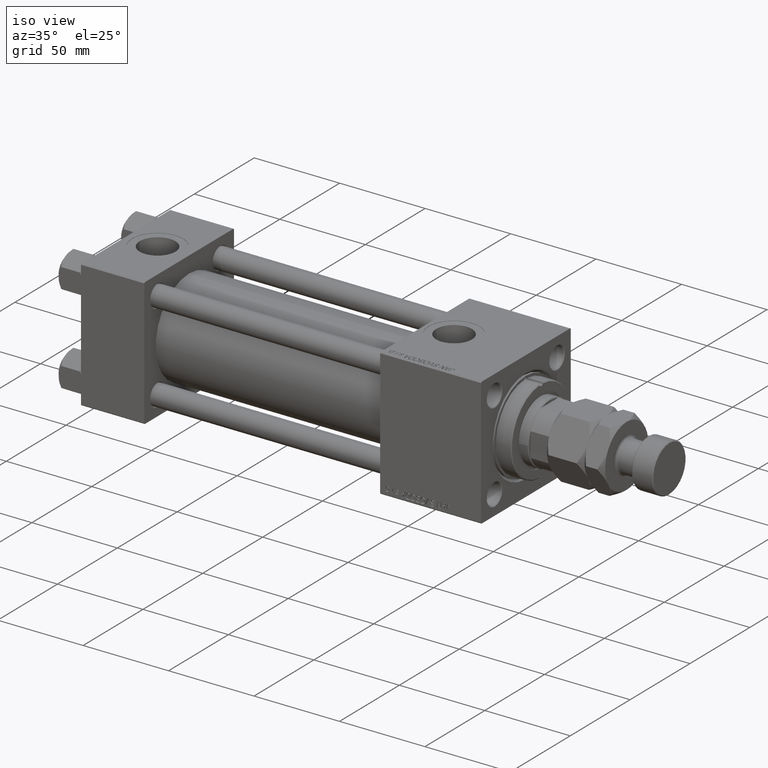
[diagram: clean part render]
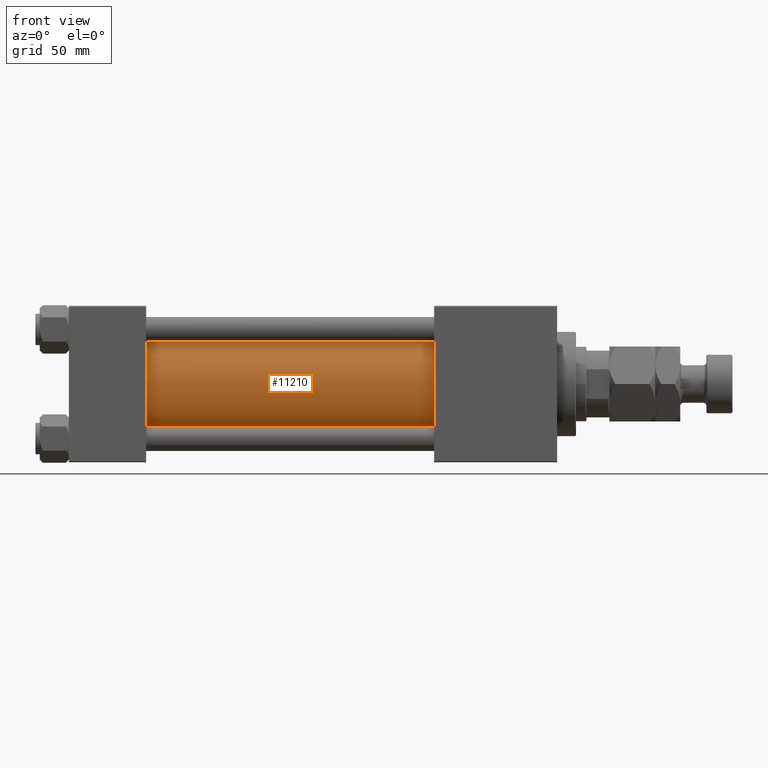
[diagram: tour spotlight — one face highlighted and labeled with its STEP entity id]
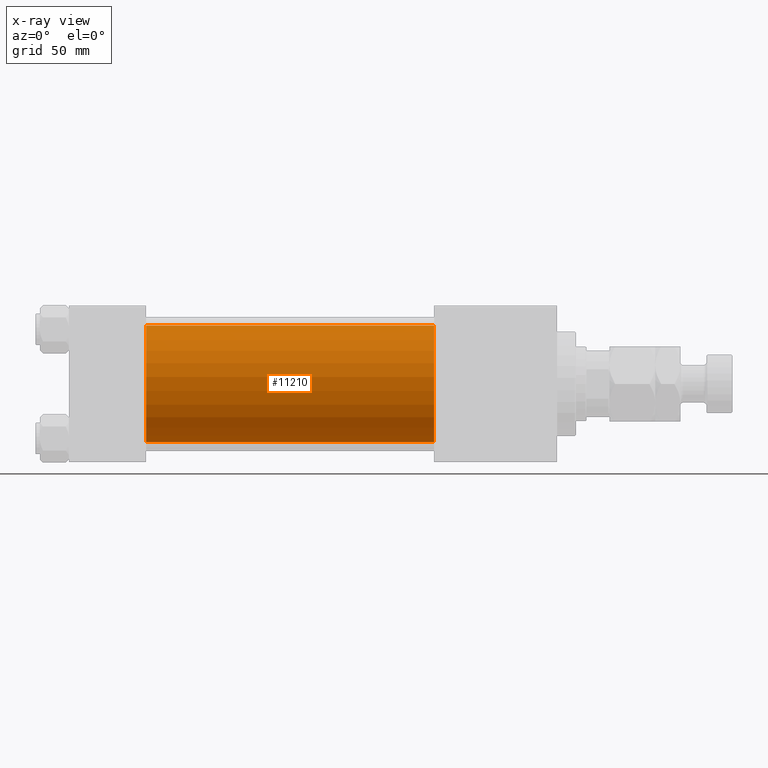
[diagram: x-ray of the same camera — body ghosted, this tour face saturated]
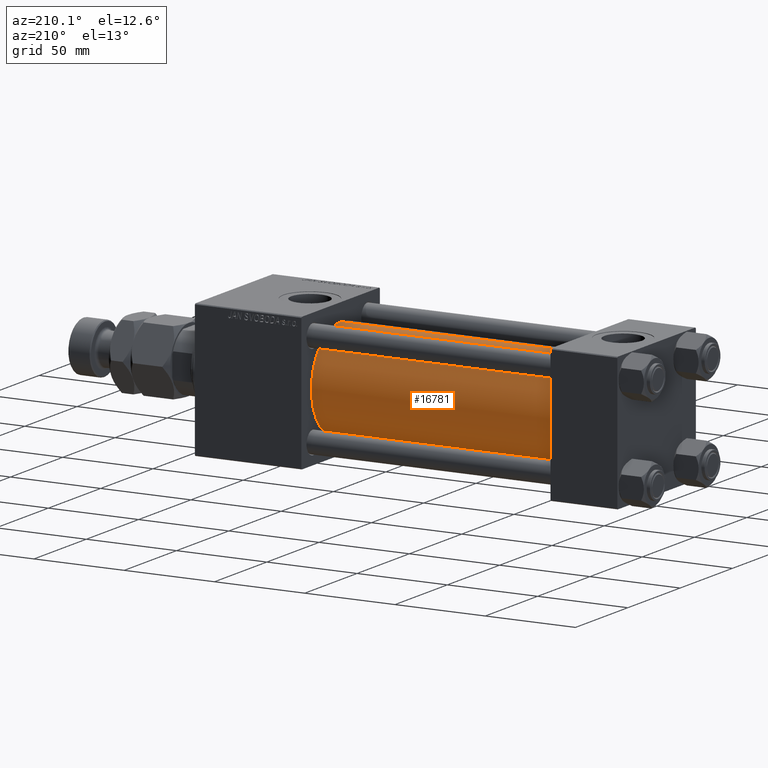
[diagram: tour spotlight — one face highlighted and labeled with its STEP entity id]
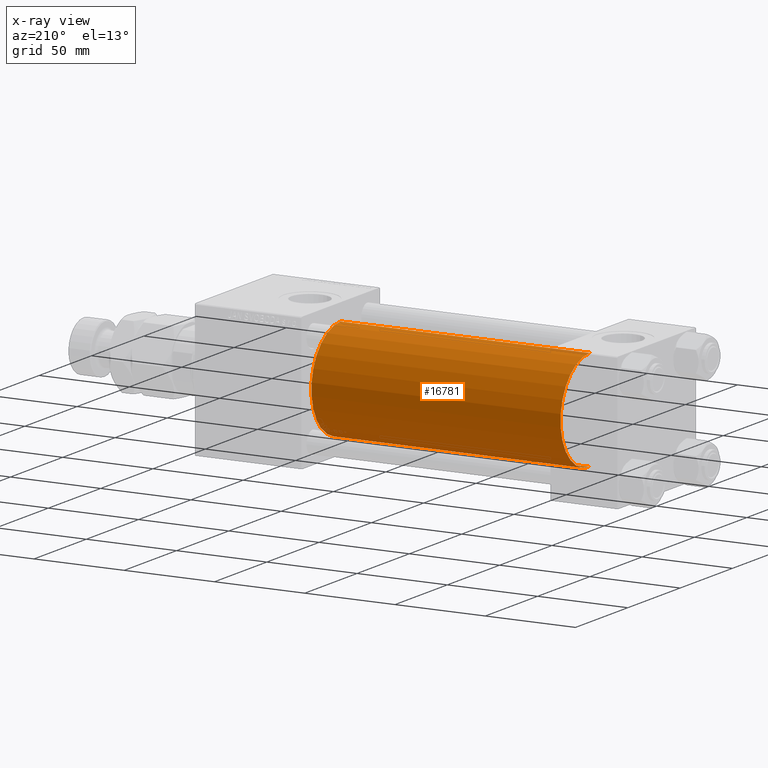
[diagram: x-ray of the same camera — body ghosted, this tour face saturated]
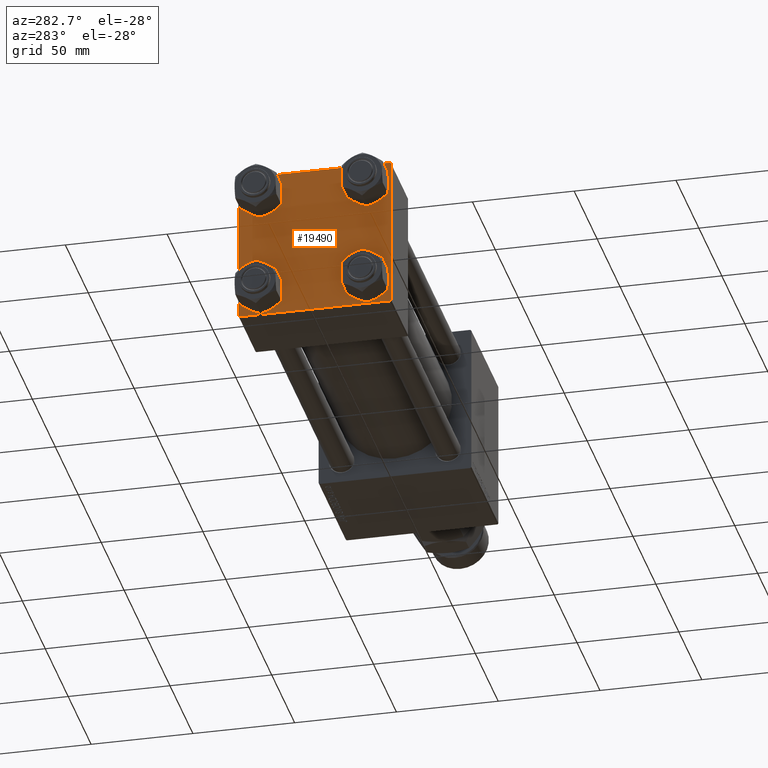
[diagram: tour spotlight — one face highlighted and labeled with its STEP entity id]
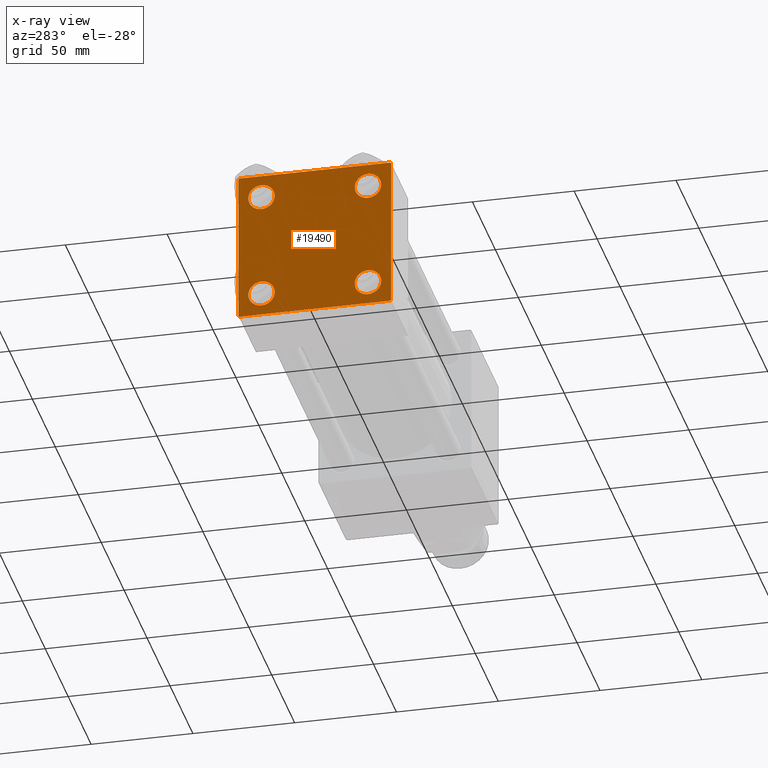
[diagram: x-ray of the same camera — body ghosted, this tour face saturated]
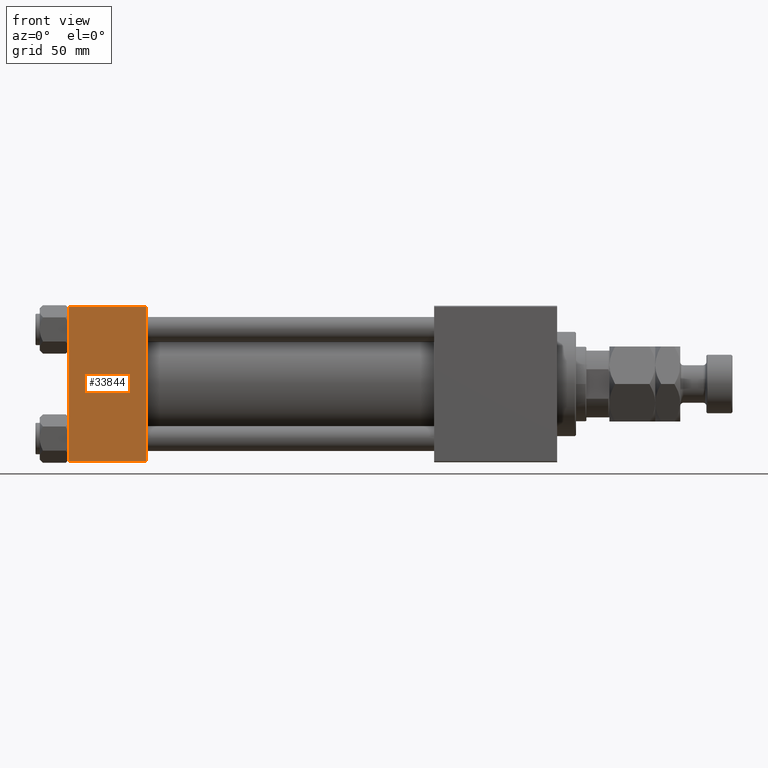
[diagram: tour spotlight — one face highlighted and labeled with its STEP entity id]
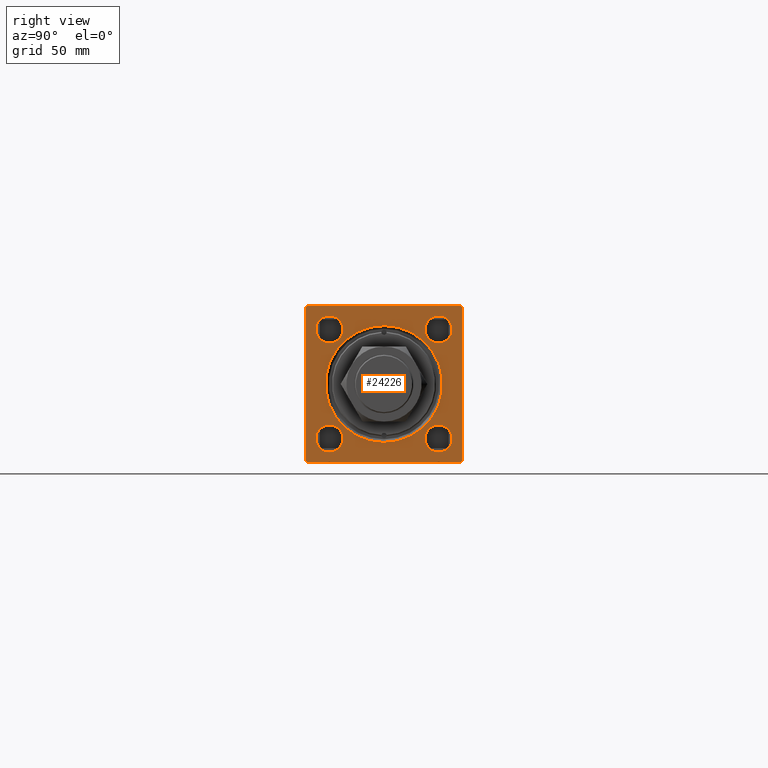
[diagram: tour spotlight — one face highlighted and labeled with its STEP entity id]
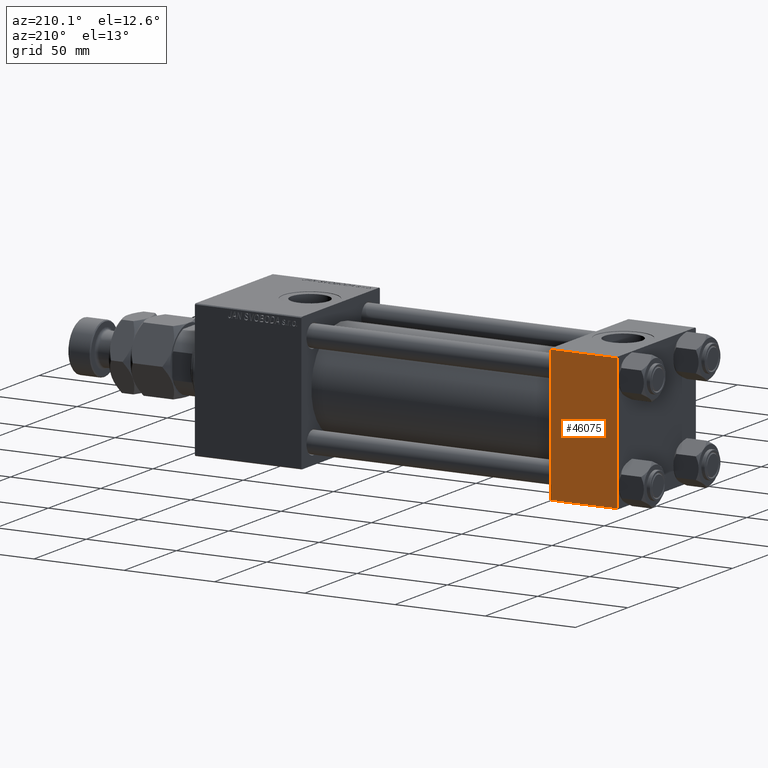
[diagram: tour spotlight — one face highlighted and labeled with its STEP entity id]
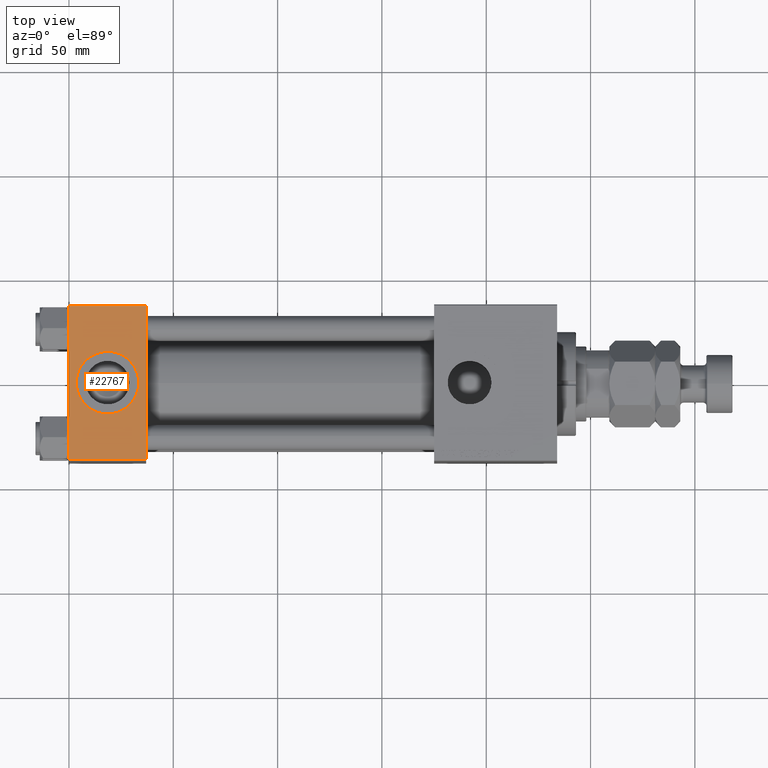
[diagram: tour spotlight — one face highlighted and labeled with its STEP entity id]
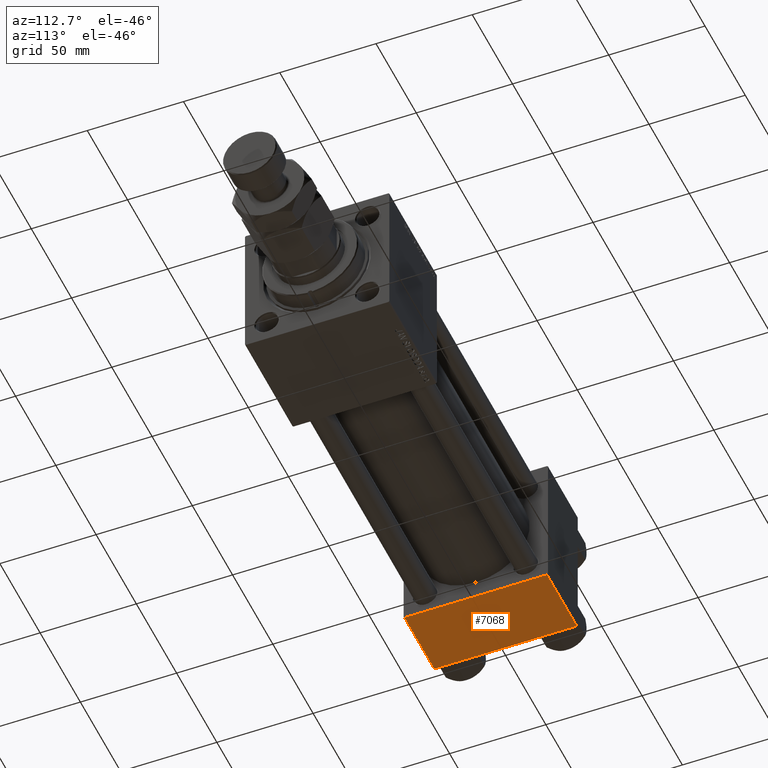
[diagram: tour spotlight — one face highlighted and labeled with its STEP entity id]
A machine part: a face-by-face anatomy tour. The part has 1206 B-rep faces; the first image is the clean iso view, then the 8 largest visible faces are spotlighted one at a time (largest first), each with its STEP entity span.

Face 1 — front view, entity #11210. An x-ray twin of the same camera follows (body ghosted, this face saturated) — the face is partly hidden behind the body. In plain terms, the highlighted cylindrical surface (partial cylindrical patch) has radius 28 mm, axis along (-1, -0, -0).
Definition (entity closure, byte-faithful):
#1229 = DIRECTION ( 'NONE',  ( 1.000000000000000000, 0.000000000000000000, 0.000000000000000000 ) ) ;
#2448 = DIRECTION ( 'NONE',  ( -1.000000000000000000, -0.000000000000000000, -0.000000000000000000 ) ) ;
#4721 = AXIS2_PLACEMENT_3D ( 'NONE', #9851, #2448, #21715 ) ;
#4752 = DIRECTION ( 'NONE',  ( 1.000000000000000000, -0.000000000000000000, 0.000000000000000000 ) ) ;
#5462 = EDGE_CURVE ( 'NONE', #48854, #29566, #29818, .T. ) ;
#7054 = AXIS2_PLACEMENT_3D ( 'NONE', #45271, #1229, #17329 ) ;
#7619 = ORIENTED_EDGE ( 'NONE', *, *, #37756, .F. ) ;
#8053 = ORIENTED_EDGE ( 'NONE', *, *, #32323, .T. ) ;
#8911 = ORIENTED_EDGE ( 'NONE', *, *, #50287, .T. ) ;
#9851 = CARTESIAN_POINT ( 'NONE',  ( 175.0000000000000284, -2.602085213965210642E-15, 0.000000000000000000 ) ) ;
#10751 = DIRECTION ( 'NONE',  ( -1.000000000000000000, -0.000000000000000000, -0.000000000000000000 ) ) ;
#11210 = ADVANCED_FACE ( 'NONE', ( #14335 ), #30432, .T. ) ;
#14302 = VECTOR ( 'NONE', #10751, 1000.000000000000000 ) ;
#14335 = FACE_OUTER_BOUND ( 'NONE', #42702, .T. ) ;
#14700 = LINE ( 'NONE', #46858, #14302 ) ;
#16828 = DIRECTION ( 'NONE',  ( -1.000000000000000000, -0.000000000000000000, -0.000000000000000000 ) ) ;
#17329 = DIRECTION ( 'NONE',  ( 0.000000000000000000, 0.000000000000000000, -1.000000000000000000 ) ) ;
#20414 = CIRCLE ( 'NONE', #33899, 28.00000000000000000 ) ;
#21299 = CARTESIAN_POINT ( 'NONE',  ( 175.0000000000000284, 8.269258236473784371E-16, -28.00000000000000000 ) ) ;
#21715 = DIRECTION ( 'NONE',  ( 0.000000000000000000, 0.000000000000000000, 1.000000000000000000 ) ) ;
#22849 = CARTESIAN_POINT ( 'NONE',  ( 37.00000000000000711, 8.269258236473784371E-16, -28.00000000000000000 ) ) ;
#24280 = CARTESIAN_POINT ( 'NONE',  ( 37.00000000000000711, -2.602085213965210642E-15, 0.000000000000000000 ) ) ;
#29566 = VERTEX_POINT ( 'NONE', #41995 ) ;
#29818 = CIRCLE ( 'NONE', #7054, 28.00000000000000000 ) ;
#30432 = CYLINDRICAL_SURFACE ( 'NONE', #4721, 28.00000000000000000 ) ;
#31341 = CARTESIAN_POINT ( 'NONE',  ( 175.0000000000000284, -2.602085213965210642E-15, 28.00000000000000000 ) ) ;
#32323 = EDGE_CURVE ( 'NONE', #51511, #45218, #20414, .T. ) ;
#32412 = ORIENTED_EDGE ( 'NONE', *, *, #5462, .F. ) ;
#33899 = AXIS2_PLACEMENT_3D ( 'NONE', #24280, #4752, #45095 ) ;
#37756 = EDGE_CURVE ( 'NONE', #29566, #45218, #45279, .T. ) ;
#41799 = CARTESIAN_POINT ( 'NONE',  ( 37.00000000000000711, -2.602085213965210642E-15, 28.00000000000000000 ) ) ;
#41995 = CARTESIAN_POINT ( 'NONE',  ( 175.0000000000000284, 8.269258236473784371E-16, -28.00000000000000000 ) ) ;
#42702 = EDGE_LOOP ( 'NONE', ( #7619, #32412, #8911, #8053 ) ) ;
#45095 = DIRECTION ( 'NONE',  ( 0.000000000000000000, 0.000000000000000000, 1.000000000000000000 ) ) ;
#45218 = VERTEX_POINT ( 'NONE', #22849 ) ;
#45271 = CARTESIAN_POINT ( 'NONE',  ( 175.0000000000000284, -2.602085213965210642E-15, 0.000000000000000000 ) ) ;
#45279 = LINE ( 'NONE', #21299, #51638 ) ;
#46858 = CARTESIAN_POINT ( 'NONE',  ( 175.0000000000000284, -2.602085213965210642E-15, 28.00000000000000000 ) ) ;
#48854 = VERTEX_POINT ( 'NONE', #31341 ) ;
#50287 = EDGE_CURVE ( 'NONE', #48854, #51511, #14700, .T. ) ;
#51511 = VERTEX_POINT ( 'NONE', #41799 ) ;
#51638 = VECTOR ( 'NONE', #16828, 1000.000000000000000 ) ;

Face 2 — auxiliary view, entity #16781. An x-ray twin of the same camera follows (body ghosted, this face saturated) — the face is partly hidden behind the body. In plain terms, the highlighted cylindrical surface (partial cylindrical patch) has radius 28 mm, axis along (-1, -0, -0).
Definition (entity closure, byte-faithful):
#4663 = CYLINDRICAL_SURFACE ( 'NONE', #39356, 28.00000000000000000 ) ;
#8363 = DIRECTION ( 'NONE',  ( 0.000000000000000000, 0.000000000000000000, 1.000000000000000000 ) ) ;
#10751 = DIRECTION ( 'NONE',  ( -1.000000000000000000, -0.000000000000000000, -0.000000000000000000 ) ) ;
#11459 = AXIS2_PLACEMENT_3D ( 'NONE', #47903, #51603, #22891 ) ;
#14302 = VECTOR ( 'NONE', #10751, 1000.000000000000000 ) ;
#14423 = EDGE_CURVE ( 'NONE', #45218, #51511, #40105, .T. ) ;
#14700 = LINE ( 'NONE', #46858, #14302 ) ;
#16781 = ADVANCED_FACE ( 'NONE', ( #24457 ), #4663, .T. ) ;
#16828 = DIRECTION ( 'NONE',  ( -1.000000000000000000, -0.000000000000000000, -0.000000000000000000 ) ) ;
#19099 = DIRECTION ( 'NONE',  ( 1.000000000000000000, 0.000000000000000000, 0.000000000000000000 ) ) ;
#21299 = CARTESIAN_POINT ( 'NONE',  ( 175.0000000000000284, 8.269258236473784371E-16, -28.00000000000000000 ) ) ;
#21473 = EDGE_LOOP ( 'NONE', ( #47817, #36556, #26665, #21531 ) ) ;
#21531 = ORIENTED_EDGE ( 'NONE', *, *, #50287, .F. ) ;
#22849 = CARTESIAN_POINT ( 'NONE',  ( 37.00000000000000711, 8.269258236473784371E-16, -28.00000000000000000 ) ) ;
#22891 = DIRECTION ( 'NONE',  ( 0.000000000000000000, 0.000000000000000000, 1.000000000000000000 ) ) ;
#24457 = FACE_OUTER_BOUND ( 'NONE', #21473, .T. ) ;
#26006 = CIRCLE ( 'NONE', #36984, 28.00000000000000000 ) ;
#26665 = ORIENTED_EDGE ( 'NONE', *, *, #14423, .T. ) ;
#28417 = DIRECTION ( 'NONE',  ( -1.000000000000000000, -0.000000000000000000, -0.000000000000000000 ) ) ;
#29566 = VERTEX_POINT ( 'NONE', #41995 ) ;
#31341 = CARTESIAN_POINT ( 'NONE',  ( 175.0000000000000284, -2.602085213965210642E-15, 28.00000000000000000 ) ) ;
#35463 = DIRECTION ( 'NONE',  ( 0.000000000000000000, 0.000000000000000000, -1.000000000000000000 ) ) ;
#36556 = ORIENTED_EDGE ( 'NONE', *, *, #37756, .T. ) ;
#36984 = AXIS2_PLACEMENT_3D ( 'NONE', #51253, #19099, #35463 ) ;
#37756 = EDGE_CURVE ( 'NONE', #29566, #45218, #45279, .T. ) ;
#39356 = AXIS2_PLACEMENT_3D ( 'NONE', #48444, #28417, #8363 ) ;
#40105 = CIRCLE ( 'NONE', #11459, 28.00000000000000000 ) ;
#41799 = CARTESIAN_POINT ( 'NONE',  ( 37.00000000000000711, -2.602085213965210642E-15, 28.00000000000000000 ) ) ;
#41995 = CARTESIAN_POINT ( 'NONE',  ( 175.0000000000000284, 8.269258236473784371E-16, -28.00000000000000000 ) ) ;
#43927 = EDGE_CURVE ( 'NONE', #29566, #48854, #26006, .T. ) ;
#45218 = VERTEX_POINT ( 'NONE', #22849 ) ;
#45279 = LINE ( 'NONE', #21299, #51638 ) ;
#46858 = CARTESIAN_POINT ( 'NONE',  ( 175.0000000000000284, -2.602085213965210642E-15, 28.00000000000000000 ) ) ;
#47817 = ORIENTED_EDGE ( 'NONE', *, *, #43927, .F. ) ;
#47903 = CARTESIAN_POINT ( 'NONE',  ( 37.00000000000000711, -2.602085213965210642E-15, 0.000000000000000000 ) ) ;
#48444 = CARTESIAN_POINT ( 'NONE',  ( 175.0000000000000284, -2.602085213965210642E-15, 0.000000000000000000 ) ) ;
#48854 = VERTEX_POINT ( 'NONE', #31341 ) ;
#50287 = EDGE_CURVE ( 'NONE', #48854, #51511, #14700, .T. ) ;
#51253 = CARTESIAN_POINT ( 'NONE',  ( 175.0000000000000284, -2.602085213965210642E-15, 0.000000000000000000 ) ) ;
#51511 = VERTEX_POINT ( 'NONE', #41799 ) ;
#51603 = DIRECTION ( 'NONE',  ( 1.000000000000000000, -0.000000000000000000, 0.000000000000000000 ) ) ;
#51638 = VECTOR ( 'NONE', #16828, 1000.000000000000000 ) ;

Face 3 — auxiliary view, entity #19490. An x-ray twin of the same camera follows (body ghosted, this face saturated) — the face is partly hidden behind the body. In plain terms, the highlighted planar face has unit normal (-1, 0, 0).
Definition (entity closure, byte-faithful):
#318 = FACE_BOUND ( 'NONE', #13454, .T. ) ;
#562 = VERTEX_POINT ( 'NONE', #46152 ) ;
#1149 = VECTOR ( 'NONE', #20252, 1000.000000000000000 ) ;
#1473 = CIRCLE ( 'NONE', #42759, 6.500000000000015987 ) ;
#2720 = DIRECTION ( 'NONE',  ( 1.000000000000000000, -0.000000000000000000, 0.000000000000000000 ) ) ;
#2851 = CARTESIAN_POINT ( 'NONE',  ( 0.000000000000000000, -37.50000000000000711, 37.49999999999999289 ) ) ;
#2952 = CIRCLE ( 'NONE', #24006, 6.500000000000015987 ) ;
#3439 = VERTEX_POINT ( 'NONE', #50183 ) ;
#3624 = DIRECTION ( 'NONE',  ( 0.000000000000000000, 9.251858538542971581E-17, -1.000000000000000000 ) ) ;
#4221 = CARTESIAN_POINT ( 'NONE',  ( 0.000000000000000000, 26.14999999999999858, 32.65000000000002700 ) ) ;
#4776 = CARTESIAN_POINT ( 'NONE',  ( 0.000000000000000000, -37.00000000000002132, -37.50000000000000711 ) ) ;
#4936 = VECTOR ( 'NONE', #7166, 1000.000000000000000 ) ;
#5358 = EDGE_CURVE ( 'NONE', #39658, #34530, #27377, .T. ) ;
#5552 = VERTEX_POINT ( 'NONE', #12015 ) ;
#5672 = AXIS2_PLACEMENT_3D ( 'NONE', #35907, #27204, #24014 ) ;
#5844 = CARTESIAN_POINT ( 'NONE',  ( 0.000000000000000000, -26.14999999999999147, -26.15000000000000924 ) ) ;
#6252 = DIRECTION ( 'NONE',  ( 0.000000000000000000, 0.000000000000000000, 1.000000000000000000 ) ) ;
#6312 = EDGE_LOOP ( 'NONE', ( #22823, #40745, #42363, #13573, #33487, #49384, #35191, #30386 ) ) ;
#7153 = VERTEX_POINT ( 'NONE', #29369 ) ;
#7166 = DIRECTION ( 'NONE',  ( 0.000000000000000000, -1.000000000000000000, -9.251858538542971581E-17 ) ) ;
#7200 = VECTOR ( 'NONE', #9720, 1000.000000000000114 ) ;
#7224 = CIRCLE ( 'NONE', #41744, 6.500000000000015987 ) ;
#7310 = EDGE_CURVE ( 'NONE', #7153, #24403, #34371, .T. ) ;
#7678 = LINE ( 'NONE', #23781, #4936 ) ;
#7704 = DIRECTION ( 'NONE',  ( -1.000000000000000000, 0.000000000000000000, -0.000000000000000000 ) ) ;
#7886 = VERTEX_POINT ( 'NONE', #16590 ) ;
#8522 = CARTESIAN_POINT ( 'NONE',  ( 0.000000000000000000, 36.99999999999997868, -37.50000000000000000 ) ) ;
#8571 = CARTESIAN_POINT ( 'NONE',  ( 0.000000000000000000, 37.24999999999998579, -37.24999999999998579 ) ) ;
#8692 = EDGE_CURVE ( 'NONE', #15949, #18566, #2952, .T. ) ;
#8907 = VECTOR ( 'NONE', #13444, 1000.000000000000000 ) ;
#8950 = VECTOR ( 'NONE', #3624, 1000.000000000000000 ) ;
#9179 = EDGE_CURVE ( 'NONE', #34551, #31589, #14199, .T. ) ;
#9720 = DIRECTION ( 'NONE',  ( -0.000000000000000000, 0.7071067811865474617, 0.7071067811865474617 ) ) ;
#9843 = AXIS2_PLACEMENT_3D ( 'NONE', #14855, #2720, #22520 ) ;
#9979 = CARTESIAN_POINT ( 'NONE',  ( -0.000000000000000000, -37.25000000000000000, 37.25000000000000000 ) ) ;
#10797 = VERTEX_POINT ( 'NONE', #31350 ) ;
#10959 = CARTESIAN_POINT ( 'NONE',  ( 0.000000000000000000, -37.00000000000000711, 37.49999999999999289 ) ) ;
#11088 = ORIENTED_EDGE ( 'NONE', *, *, #13655, .T. ) ;
#11714 = VECTOR ( 'NONE', #40219, 1000.000000000000114 ) ;
#12015 = CARTESIAN_POINT ( 'NONE',  ( 0.000000000000000000, 26.14999999999999858, 19.64999999999998437 ) ) ;
#12458 = EDGE_CURVE ( 'NONE', #34551, #7886, #19729, .T. ) ;
#12883 = DIRECTION ( 'NONE',  ( 0.000000000000000000, 0.7071067811865474617, -0.7071067811865474617 ) ) ;
#13365 = EDGE_CURVE ( 'NONE', #34530, #7886, #44831, .T. ) ;
#13444 = DIRECTION ( 'NONE',  ( 0.000000000000000000, -0.7071067811865524577, 0.7071067811865426878 ) ) ;
#13454 = EDGE_LOOP ( 'NONE', ( #22470, #11088 ) ) ;
#13573 = ORIENTED_EDGE ( 'NONE', *, *, #13365, .T. ) ;
#13655 = EDGE_CURVE ( 'NONE', #34491, #562, #7224, .T. ) ;
#14199 = LINE ( 'NONE', #9979, #7200 ) ;
#14855 = CARTESIAN_POINT ( 'NONE',  ( 0.000000000000000000, -26.14999999999999147, 26.15000000000000924 ) ) ;
#15661 = EDGE_CURVE ( 'NONE', #10797, #34088, #28364, .T. ) ;
#15949 = VERTEX_POINT ( 'NONE', #38292 ) ;
#16590 = CARTESIAN_POINT ( 'NONE',  ( 0.000000000000000000, -37.50000000000000000, -37.00000000000003553 ) ) ;
#16713 = VECTOR ( 'NONE', #12883, 1000.000000000000114 ) ;
#16736 = AXIS2_PLACEMENT_3D ( 'NONE', #24065, #7704, #28026 ) ;
#16838 = CARTESIAN_POINT ( 'NONE',  ( 0.000000000000000000, 37.24999999999999289, 37.24999999999999289 ) ) ;
#17605 = CARTESIAN_POINT ( 'NONE',  ( 0.000000000000000000, -26.14999999999999147, 26.15000000000000924 ) ) ;
#17881 = DIRECTION ( 'NONE',  ( 0.000000000000000000, 0.000000000000000000, 1.000000000000000000 ) ) ;
#18251 = DIRECTION ( 'NONE',  ( 1.000000000000000000, -0.000000000000000000, 0.000000000000000000 ) ) ;
#18371 = CARTESIAN_POINT ( 'NONE',  ( 0.000000000000000000, 26.14999999999999858, 26.15000000000000213 ) ) ;
#18566 = VERTEX_POINT ( 'NONE', #30725 ) ;
#19011 = EDGE_LOOP ( 'NONE', ( #29159, #19550 ) ) ;
#19490 = ADVANCED_FACE ( 'NONE', ( #43577, #318, #43837, #40413, #31469 ), #24326, .T. ) ;
#19550 = ORIENTED_EDGE ( 'NONE', *, *, #30214, .T. ) ;
#19729 = LINE ( 'NONE', #2851, #8950 ) ;
#19923 = LINE ( 'NONE', #8571, #11714 ) ;
#20252 = DIRECTION ( 'NONE',  ( 0.000000000000000000, -1.000000000000000000, -9.251858538542972814E-17 ) ) ;
#20621 = EDGE_CURVE ( 'NONE', #18566, #15949, #51980, .T. ) ;
#21574 = DIRECTION ( 'NONE',  ( 1.000000000000000000, -0.000000000000000000, 0.000000000000000000 ) ) ;
#21680 = DIRECTION ( 'NONE',  ( 0.000000000000000000, 0.000000000000000000, 1.000000000000000000 ) ) ;
#22329 = DIRECTION ( 'NONE',  ( 0.000000000000000000, 0.000000000000000000, 1.000000000000000000 ) ) ;
#22470 = ORIENTED_EDGE ( 'NONE', *, *, #41876, .T. ) ;
#22520 = DIRECTION ( 'NONE',  ( 0.000000000000000000, 0.000000000000000000, 1.000000000000000000 ) ) ;
#22548 = AXIS2_PLACEMENT_3D ( 'NONE', #18371, #34735, #22329 ) ;
#22823 = ORIENTED_EDGE ( 'NONE', *, *, #7310, .T. ) ;
#23781 = CARTESIAN_POINT ( 'NONE',  ( 0.000000000000000000, 37.49999999999999289, 37.50000000000000000 ) ) ;
#24006 = AXIS2_PLACEMENT_3D ( 'NONE', #50442, #26201, #34389 ) ;
#24014 = DIRECTION ( 'NONE',  ( 0.000000000000000000, 0.000000000000000000, 1.000000000000000000 ) ) ;
#24065 = CARTESIAN_POINT ( 'NONE',  ( 0.000000000000000000, 0.000000000000000000, 0.000000000000000000 ) ) ;
#24215 = EDGE_CURVE ( 'NONE', #3439, #31589, #7678, .T. ) ;
#24326 = PLANE ( 'NONE',  #16736 ) ;
#24403 = VERTEX_POINT ( 'NONE', #37388 ) ;
#24460 = CARTESIAN_POINT ( 'NONE',  ( 0.000000000000000000, 37.49999999999999289, -37.50000000000000000 ) ) ;
#24721 = EDGE_CURVE ( 'NONE', #24403, #39658, #19923, .T. ) ;
#25008 = VERTEX_POINT ( 'NONE', #4221 ) ;
#25873 = ORIENTED_EDGE ( 'NONE', *, *, #43408, .T. ) ;
#26201 = DIRECTION ( 'NONE',  ( 1.000000000000000000, -0.000000000000000000, 0.000000000000000000 ) ) ;
#26456 = DIRECTION ( 'NONE',  ( 0.000000000000000000, 0.000000000000000000, -1.000000000000000000 ) ) ;
#26806 = AXIS2_PLACEMENT_3D ( 'NONE', #17605, #30005, #6252 ) ;
#27204 = DIRECTION ( 'NONE',  ( 1.000000000000000000, -0.000000000000000000, 0.000000000000000000 ) ) ;
#27290 = CARTESIAN_POINT ( 'NONE',  ( 0.000000000000000000, -26.14999999999999147, 19.64999999999999147 ) ) ;
#27377 = LINE ( 'NONE', #24460, #1149 ) ;
#28026 = DIRECTION ( 'NONE',  ( -0.000000000000000000, 0.000000000000000000, 1.000000000000000000 ) ) ;
#28364 = CIRCLE ( 'NONE', #9843, 6.500000000000023093 ) ;
#28980 = LINE ( 'NONE', #16838, #16713 ) ;
#29159 = ORIENTED_EDGE ( 'NONE', *, *, #41651, .T. ) ;
#29281 = CARTESIAN_POINT ( 'NONE',  ( 0.000000000000000000, -37.24999999999975842, -37.25000000000027001 ) ) ;
#29369 = CARTESIAN_POINT ( 'NONE',  ( 0.000000000000000000, 37.49999999999999289, 37.00000000000000000 ) ) ;
#30005 = DIRECTION ( 'NONE',  ( 1.000000000000000000, -0.000000000000000000, 0.000000000000000000 ) ) ;
#30214 = EDGE_CURVE ( 'NONE', #5552, #25008, #45573, .T. ) ;
#30386 = ORIENTED_EDGE ( 'NONE', *, *, #43243, .T. ) ;
#30725 = CARTESIAN_POINT ( 'NONE',  ( 0.000000000000000000, 26.14999999999999858, -19.64999999999998792 ) ) ;
#31350 = CARTESIAN_POINT ( 'NONE',  ( 0.000000000000000000, -26.14999999999999147, 32.65000000000003411 ) ) ;
#31469 = FACE_OUTER_BOUND ( 'NONE', #6312, .T. ) ;
#31589 = VERTEX_POINT ( 'NONE', #10959 ) ;
#33332 = ORIENTED_EDGE ( 'NONE', *, *, #8692, .T. ) ;
#33487 = ORIENTED_EDGE ( 'NONE', *, *, #12458, .F. ) ;
#34061 = ORIENTED_EDGE ( 'NONE', *, *, #20621, .T. ) ;
#34088 = VERTEX_POINT ( 'NONE', #27290 ) ;
#34371 = LINE ( 'NONE', #38585, #35768 ) ;
#34383 = CIRCLE ( 'NONE', #22548, 6.500000000000023093 ) ;
#34389 = DIRECTION ( 'NONE',  ( 0.000000000000000000, 0.000000000000000000, 1.000000000000000000 ) ) ;
#34491 = VERTEX_POINT ( 'NONE', #47514 ) ;
#34530 = VERTEX_POINT ( 'NONE', #4776 ) ;
#34551 = VERTEX_POINT ( 'NONE', #49851 ) ;
#34735 = DIRECTION ( 'NONE',  ( 1.000000000000000000, -0.000000000000000000, 0.000000000000000000 ) ) ;
#35191 = ORIENTED_EDGE ( 'NONE', *, *, #24215, .F. ) ;
#35768 = VECTOR ( 'NONE', #26456, 1000.000000000000000 ) ;
#35907 = CARTESIAN_POINT ( 'NONE',  ( 0.000000000000000000, 26.14999999999999858, -26.15000000000000213 ) ) ;
#37388 = CARTESIAN_POINT ( 'NONE',  ( 0.000000000000000000, 37.49999999999999289, -36.99999999999998579 ) ) ;
#38292 = CARTESIAN_POINT ( 'NONE',  ( 0.000000000000000000, 26.14999999999999858, -32.65000000000001990 ) ) ;
#38585 = CARTESIAN_POINT ( 'NONE',  ( 0.000000000000000000, 37.49999999999999289, 37.50000000000000000 ) ) ;
#38738 = EDGE_LOOP ( 'NONE', ( #39330, #25873 ) ) ;
#39330 = ORIENTED_EDGE ( 'NONE', *, *, #15661, .T. ) ;
#39658 = VERTEX_POINT ( 'NONE', #8522 ) ;
#40219 = DIRECTION ( 'NONE',  ( -0.000000000000000000, -0.7071067811865474617, -0.7071067811865474617 ) ) ;
#40413 = FACE_BOUND ( 'NONE', #19011, .T. ) ;
#40745 = ORIENTED_EDGE ( 'NONE', *, *, #24721, .T. ) ;
#41651 = EDGE_CURVE ( 'NONE', #25008, #5552, #34383, .T. ) ;
#41744 = AXIS2_PLACEMENT_3D ( 'NONE', #49975, #41795, #46008 ) ;
#41795 = DIRECTION ( 'NONE',  ( 1.000000000000000000, -0.000000000000000000, 0.000000000000000000 ) ) ;
#41876 = EDGE_CURVE ( 'NONE', #562, #34491, #1473, .T. ) ;
#42363 = ORIENTED_EDGE ( 'NONE', *, *, #5358, .T. ) ;
#42759 = AXIS2_PLACEMENT_3D ( 'NONE', #5844, #18251, #21680 ) ;
#43243 = EDGE_CURVE ( 'NONE', #3439, #7153, #28980, .T. ) ;
#43408 = EDGE_CURVE ( 'NONE', #34088, #10797, #49519, .T. ) ;
#43577 = FACE_BOUND ( 'NONE', #38738, .T. ) ;
#43837 = FACE_BOUND ( 'NONE', #47116, .T. ) ;
#44831 = LINE ( 'NONE', #29281, #8907 ) ;
#45573 = CIRCLE ( 'NONE', #51484, 6.500000000000023093 ) ;
#46008 = DIRECTION ( 'NONE',  ( 0.000000000000000000, 0.000000000000000000, 1.000000000000000000 ) ) ;
#46152 = CARTESIAN_POINT ( 'NONE',  ( 0.000000000000000000, -26.14999999999999147, -19.64999999999999503 ) ) ;
#47116 = EDGE_LOOP ( 'NONE', ( #34061, #33332 ) ) ;
#47514 = CARTESIAN_POINT ( 'NONE',  ( 0.000000000000000000, -26.14999999999999147, -32.65000000000002700 ) ) ;
#49384 = ORIENTED_EDGE ( 'NONE', *, *, #9179, .T. ) ;
#49519 = CIRCLE ( 'NONE', #26806, 6.500000000000023093 ) ;
#49851 = CARTESIAN_POINT ( 'NONE',  ( 0.000000000000000000, -37.50000000000000711, 36.99999999999999289 ) ) ;
#49975 = CARTESIAN_POINT ( 'NONE',  ( 0.000000000000000000, -26.14999999999999147, -26.15000000000000924 ) ) ;
#50046 = CARTESIAN_POINT ( 'NONE',  ( 0.000000000000000000, 26.14999999999999858, 26.15000000000000213 ) ) ;
#50183 = CARTESIAN_POINT ( 'NONE',  ( 0.000000000000000000, 36.99999999999999289, 37.50000000000000000 ) ) ;
#50442 = CARTESIAN_POINT ( 'NONE',  ( 0.000000000000000000, 26.14999999999999858, -26.15000000000000213 ) ) ;
#51484 = AXIS2_PLACEMENT_3D ( 'NONE', #50046, #21574, #17881 ) ;
#51980 = CIRCLE ( 'NONE', #5672, 6.500000000000015987 ) ;

Face 4 — front view, entity #33844. In plain terms, the highlighted planar face has unit normal (0, 1, 0).
Definition (entity closure, byte-faithful):
#1966 = EDGE_CURVE ( 'NONE', #29503, #34551, #38212, .T. ) ;
#2851 = CARTESIAN_POINT ( 'NONE',  ( 0.000000000000000000, -37.50000000000000711, 37.49999999999999289 ) ) ;
#3624 = DIRECTION ( 'NONE',  ( 0.000000000000000000, 9.251858538542971581E-17, -1.000000000000000000 ) ) ;
#4021 = VECTOR ( 'NONE', #23735, 1000.000000000000000 ) ;
#6862 = CARTESIAN_POINT ( 'NONE',  ( 37.00000000000000000, -37.50000000000000000, -37.00000000000003553 ) ) ;
#7886 = VERTEX_POINT ( 'NONE', #16590 ) ;
#7967 = VERTEX_POINT ( 'NONE', #17879 ) ;
#8950 = VECTOR ( 'NONE', #3624, 1000.000000000000000 ) ;
#11267 = ORIENTED_EDGE ( 'NONE', *, *, #45103, .F. ) ;
#11872 = LINE ( 'NONE', #6862, #4021 ) ;
#12458 = EDGE_CURVE ( 'NONE', #34551, #7886, #19729, .T. ) ;
#16257 = FACE_OUTER_BOUND ( 'NONE', #37575, .T. ) ;
#16590 = CARTESIAN_POINT ( 'NONE',  ( 0.000000000000000000, -37.50000000000000000, -37.00000000000003553 ) ) ;
#17584 = CARTESIAN_POINT ( 'NONE',  ( 37.00000000000000000, -37.50000000000000711, 37.49999999999999289 ) ) ;
#17879 = CARTESIAN_POINT ( 'NONE',  ( 37.00000000000000000, -37.50000000000000000, -37.00000000000003553 ) ) ;
#18949 = EDGE_CURVE ( 'NONE', #7886, #7967, #11872, .T. ) ;
#19729 = LINE ( 'NONE', #2851, #8950 ) ;
#21823 = ORIENTED_EDGE ( 'NONE', *, *, #18949, .T. ) ;
#22377 = CARTESIAN_POINT ( 'NONE',  ( 37.00000000000000000, -37.50000000000000711, 36.99999999999999289 ) ) ;
#22670 = VECTOR ( 'NONE', #45012, 1000.000000000000000 ) ;
#23735 = DIRECTION ( 'NONE',  ( 1.000000000000000000, 0.000000000000000000, 0.000000000000000000 ) ) ;
#28771 = ORIENTED_EDGE ( 'NONE', *, *, #1966, .T. ) ;
#29436 = DIRECTION ( 'NONE',  ( 0.000000000000000000, -9.251858538542971581E-17, 1.000000000000000000 ) ) ;
#29503 = VERTEX_POINT ( 'NONE', #33604 ) ;
#31293 = AXIS2_PLACEMENT_3D ( 'NONE', #48414, #33139, #29436 ) ;
#32345 = PLANE ( 'NONE',  #31293 ) ;
#33139 = DIRECTION ( 'NONE',  ( -0.000000000000000000, 1.000000000000000000, 9.251858538542971581E-17 ) ) ;
#33604 = CARTESIAN_POINT ( 'NONE',  ( 37.00000000000000000, -37.50000000000000711, 36.99999999999999289 ) ) ;
#33844 = ADVANCED_FACE ( 'NONE', ( #16257 ), #32345, .F. ) ;
#34551 = VERTEX_POINT ( 'NONE', #49851 ) ;
#37575 = EDGE_LOOP ( 'NONE', ( #40870, #21823, #11267, #28771 ) ) ;
#38212 = LINE ( 'NONE', #22377, #43136 ) ;
#38475 = DIRECTION ( 'NONE',  ( -1.000000000000000000, 0.000000000000000000, 0.000000000000000000 ) ) ;
#40870 = ORIENTED_EDGE ( 'NONE', *, *, #12458, .T. ) ;
#43136 = VECTOR ( 'NONE', #38475, 1000.000000000000000 ) ;
#45012 = DIRECTION ( 'NONE',  ( 0.000000000000000000, 9.251858538542971581E-17, -1.000000000000000000 ) ) ;
#45103 = EDGE_CURVE ( 'NONE', #29503, #7967, #45269, .T. ) ;
#45269 = LINE ( 'NONE', #17584, #22670 ) ;
#48414 = CARTESIAN_POINT ( 'NONE',  ( 37.00000000000000000, -37.50000000000000711, 37.49999999999999289 ) ) ;
#49851 = CARTESIAN_POINT ( 'NONE',  ( 0.000000000000000000, -37.50000000000000711, 36.99999999999999289 ) ) ;

Face 5 — right view, entity #24226. In plain terms, the highlighted planar face has unit normal (-1, 0, 0).
Definition (entity closure, byte-faithful):
#552 = DIRECTION ( 'NONE',  ( 0.000000000000000000, 0.000000000000000000, 1.000000000000000000 ) ) ;
#692 = ORIENTED_EDGE ( 'NONE', *, *, #9181, .T. ) ;
#1179 = ORIENTED_EDGE ( 'NONE', *, *, #38314, .T. ) ;
#1284 = DIRECTION ( 'NONE',  ( -1.000000000000000000, -0.000000000000000000, 0.000000000000000000 ) ) ;
#2261 = AXIS2_PLACEMENT_3D ( 'NONE', #46100, #1284, #29524 ) ;
#2323 = CARTESIAN_POINT ( 'NONE',  ( 234.0000000000000000, -26.14999999999999147, 26.14999999999999503 ) ) ;
#3137 = ORIENTED_EDGE ( 'NONE', *, *, #27452, .T. ) ;
#3239 = EDGE_CURVE ( 'NONE', #3909, #11079, #10364, .T. ) ;
#3431 = LINE ( 'NONE', #3694, #39247 ) ;
#3438 = DIRECTION ( 'NONE',  ( -1.000000000000000000, -0.000000000000000000, 0.000000000000000000 ) ) ;
#3577 = EDGE_CURVE ( 'NONE', #14067, #16375, #18552, .T. ) ;
#3694 = CARTESIAN_POINT ( 'NONE',  ( 234.0000000000000000, -37.00000000000001421, -37.50000000000000000 ) ) ;
#3745 = EDGE_CURVE ( 'NONE', #48585, #47642, #10402, .T. ) ;
#3909 = VERTEX_POINT ( 'NONE', #22970 ) ;
#3915 = CARTESIAN_POINT ( 'NONE',  ( 234.0000000000000000, 26.14999999999999858, 32.64999999999995595 ) ) ;
#4130 = VECTOR ( 'NONE', #4346, 1000.000000000000000 ) ;
#4274 = CARTESIAN_POINT ( 'NONE',  ( 234.0000000000000000, 37.50000000000000000, -37.00000000000002132 ) ) ;
#4346 = DIRECTION ( 'NONE',  ( 0.000000000000000000, 0.000000000000000000, -1.000000000000000000 ) ) ;
#4451 = DIRECTION ( 'NONE',  ( -1.000000000000000000, -0.000000000000000000, 0.000000000000000000 ) ) ;
#4588 = VERTEX_POINT ( 'NONE', #14407 ) ;
#5013 = CARTESIAN_POINT ( 'NONE',  ( 234.0000000000000000, 37.50000000000000000, 36.99999999999999289 ) ) ;
#5103 = CARTESIAN_POINT ( 'NONE',  ( 234.0000000000000000, -26.14999999999999147, 19.65000000000004832 ) ) ;
#5604 = CARTESIAN_POINT ( 'NONE',  ( 234.0000000000000000, -37.50000000000000000, 37.00000000000000711 ) ) ;
#6006 = LINE ( 'NONE', #49790, #24876 ) ;
#7103 = ORIENTED_EDGE ( 'NONE', *, *, #23294, .F. ) ;
#7781 = CARTESIAN_POINT ( 'NONE',  ( 234.0000000000000000, 37.50000000000000000, 37.49999999999999289 ) ) ;
#8207 = EDGE_CURVE ( 'NONE', #41050, #15095, #33284, .T. ) ;
#8392 = EDGE_LOOP ( 'NONE', ( #51236, #1179 ) ) ;
#8686 = AXIS2_PLACEMENT_3D ( 'NONE', #34063, #45388, #41177 ) ;
#8741 = FACE_BOUND ( 'NONE', #27107, .T. ) ;
#9181 = EDGE_CURVE ( 'NONE', #18212, #14067, #6006, .T. ) ;
#9652 = DIRECTION ( 'NONE',  ( 0.000000000000000000, 0.000000000000000000, 1.000000000000000000 ) ) ;
#9813 = ORIENTED_EDGE ( 'NONE', *, *, #27571, .T. ) ;
#10008 = EDGE_CURVE ( 'NONE', #11079, #3909, #12254, .T. ) ;
#10364 = CIRCLE ( 'NONE', #45716, 6.499999999999946709 ) ;
#10402 = CIRCLE ( 'NONE', #8686, 6.499999999999953815 ) ;
#10717 = CIRCLE ( 'NONE', #2261, 27.99999999999999645 ) ;
#10869 = ORIENTED_EDGE ( 'NONE', *, *, #41889, .T. ) ;
#11079 = VERTEX_POINT ( 'NONE', #5103 ) ;
#11362 = AXIS2_PLACEMENT_3D ( 'NONE', #32218, #39608, #44075 ) ;
#12192 = VERTEX_POINT ( 'NONE', #33482 ) ;
#12254 = CIRCLE ( 'NONE', #48464, 6.499999999999946709 ) ;
#12430 = PLANE ( 'NONE',  #15060 ) ;
#12480 = CIRCLE ( 'NONE', #39430, 6.499999999999953815 ) ;
#12680 = DIRECTION ( 'NONE',  ( 0.000000000000000000, 0.000000000000000000, 1.000000000000000000 ) ) ;
#12826 = DIRECTION ( 'NONE',  ( 0.000000000000000000, 0.7071067811865279218, -0.7071067811865671127 ) ) ;
#12972 = FACE_BOUND ( 'NONE', #37412, .T. ) ;
#13282 = AXIS2_PLACEMENT_3D ( 'NONE', #30396, #26434, #18515 ) ;
#13283 = EDGE_CURVE ( 'NONE', #4588, #22901, #3431, .T. ) ;
#14067 = VERTEX_POINT ( 'NONE', #38858 ) ;
#14168 = VECTOR ( 'NONE', #24026, 1000.000000000000000 ) ;
#14407 = CARTESIAN_POINT ( 'NONE',  ( 234.0000000000000000, -37.50000000000000711, -36.99999999999997868 ) ) ;
#14941 = ORIENTED_EDGE ( 'NONE', *, *, #3745, .T. ) ;
#15060 = AXIS2_PLACEMENT_3D ( 'NONE', #48546, #44333, #552 ) ;
#15095 = VERTEX_POINT ( 'NONE', #37248 ) ;
#15232 = VERTEX_POINT ( 'NONE', #23220 ) ;
#15854 = ORIENTED_EDGE ( 'NONE', *, *, #8207, .T. ) ;
#16375 = VERTEX_POINT ( 'NONE', #37960 ) ;
#16519 = EDGE_CURVE ( 'NONE', #31170, #47537, #10717, .T. ) ;
#17495 = CIRCLE ( 'NONE', #13282, 6.499999999999953815 ) ;
#17819 = EDGE_LOOP ( 'NONE', ( #50118, #14941 ) ) ;
#18105 = EDGE_CURVE ( 'NONE', #18765, #50999, #12480, .T. ) ;
#18212 = VERTEX_POINT ( 'NONE', #5013 ) ;
#18515 = DIRECTION ( 'NONE',  ( 0.000000000000000000, 0.000000000000000000, 1.000000000000000000 ) ) ;
#18552 = LINE ( 'NONE', #30433, #48276 ) ;
#18765 = VERTEX_POINT ( 'NONE', #42252 ) ;
#19390 = AXIS2_PLACEMENT_3D ( 'NONE', #43673, #47626, #27858 ) ;
#19601 = ORIENTED_EDGE ( 'NONE', *, *, #41896, .T. ) ;
#20021 = VECTOR ( 'NONE', #33563, 1000.000000000000000 ) ;
#20353 = FACE_BOUND ( 'NONE', #39418, .T. ) ;
#22388 = CARTESIAN_POINT ( 'NONE',  ( 234.0000000000000000, -26.15000000000000213, -19.65000000000005187 ) ) ;
#22737 = CARTESIAN_POINT ( 'NONE',  ( 234.0000000000000000, 37.50000000000000000, -37.00000000000002132 ) ) ;
#22901 = VERTEX_POINT ( 'NONE', #29943 ) ;
#22970 = CARTESIAN_POINT ( 'NONE',  ( 234.0000000000000000, -26.14999999999999147, 32.64999999999994174 ) ) ;
#23196 = ORIENTED_EDGE ( 'NONE', *, *, #13283, .T. ) ;
#23220 = CARTESIAN_POINT ( 'NONE',  ( 234.0000000000000000, 37.00000000000000000, -37.50000000000000000 ) ) ;
#23294 = EDGE_CURVE ( 'NONE', #15232, #22901, #48279, .T. ) ;
#23627 = DIRECTION ( 'NONE',  ( -1.000000000000000000, -0.000000000000000000, 0.000000000000000000 ) ) ;
#24026 = DIRECTION ( 'NONE',  ( 0.000000000000000000, -1.000000000000000000, 0.000000000000000000 ) ) ;
#24226 = ADVANCED_FACE ( 'NONE', ( #12972, #20353, #28258, #8741, #32479, #36714 ), #12430, .F. ) ;
#24502 = CARTESIAN_POINT ( 'NONE',  ( 234.0000000000000000, -26.14999999999999147, 26.14999999999999503 ) ) ;
#24657 = EDGE_CURVE ( 'NONE', #18212, #49169, #32853, .T. ) ;
#24876 = VECTOR ( 'NONE', #25802, 1000.000000000000000 ) ;
#25096 = ORIENTED_EDGE ( 'NONE', *, *, #3239, .T. ) ;
#25802 = DIRECTION ( 'NONE',  ( 0.000000000000000000, -0.7071067811865279218, 0.7071067811865671127 ) ) ;
#26434 = DIRECTION ( 'NONE',  ( -1.000000000000000000, -0.000000000000000000, 0.000000000000000000 ) ) ;
#27107 = EDGE_LOOP ( 'NONE', ( #3137, #15854 ) ) ;
#27339 = CARTESIAN_POINT ( 'NONE',  ( 234.0000000000000000, -26.15000000000000213, -26.15000000000000213 ) ) ;
#27452 = EDGE_CURVE ( 'NONE', #15095, #41050, #32884, .T. ) ;
#27571 = EDGE_CURVE ( 'NONE', #16375, #12192, #41472, .T. ) ;
#27858 = DIRECTION ( 'NONE',  ( 0.000000000000000000, 0.000000000000000000, 1.000000000000000000 ) ) ;
#28103 = DIRECTION ( 'NONE',  ( 0.000000000000000000, 0.000000000000000000, 1.000000000000000000 ) ) ;
#28258 = FACE_BOUND ( 'NONE', #17819, .T. ) ;
#28363 = DIRECTION ( 'NONE',  ( 0.000000000000000000, -9.251858538542972814E-17, -1.000000000000000000 ) ) ;
#29453 = CARTESIAN_POINT ( 'NONE',  ( 234.0000000000000000, 3.429011037612588881E-15, 27.99999999999999645 ) ) ;
#29524 = DIRECTION ( 'NONE',  ( 0.000000000000000000, 0.000000000000000000, 1.000000000000000000 ) ) ;
#29943 = CARTESIAN_POINT ( 'NONE',  ( 234.0000000000000000, -37.00000000000001421, -37.50000000000000000 ) ) ;
#30396 = CARTESIAN_POINT ( 'NONE',  ( 234.0000000000000000, 26.14999999999999858, 26.15000000000000213 ) ) ;
#30433 = CARTESIAN_POINT ( 'NONE',  ( 234.0000000000000000, 37.50000000000000000, 37.49999999999999289 ) ) ;
#31170 = VERTEX_POINT ( 'NONE', #34776 ) ;
#31217 = ORIENTED_EDGE ( 'NONE', *, *, #10008, .T. ) ;
#31371 = ORIENTED_EDGE ( 'NONE', *, *, #18105, .T. ) ;
#31479 = CIRCLE ( 'NONE', #38227, 27.99999999999999645 ) ;
#31590 = DIRECTION ( 'NONE',  ( -1.000000000000000000, -0.000000000000000000, 0.000000000000000000 ) ) ;
#32218 = CARTESIAN_POINT ( 'NONE',  ( 234.0000000000000000, 26.14999999999999858, -26.15000000000000213 ) ) ;
#32322 = CARTESIAN_POINT ( 'NONE',  ( 234.0000000000000000, -37.50000000000000000, 37.49999999999997868 ) ) ;
#32479 = FACE_BOUND ( 'NONE', #8392, .T. ) ;
#32853 = LINE ( 'NONE', #7781, #4130 ) ;
#32857 = LINE ( 'NONE', #32322, #43250 ) ;
#32873 = EDGE_CURVE ( 'NONE', #47642, #48585, #50750, .T. ) ;
#32884 = CIRCLE ( 'NONE', #19390, 6.499999999999953815 ) ;
#33284 = CIRCLE ( 'NONE', #11362, 6.499999999999953815 ) ;
#33482 = CARTESIAN_POINT ( 'NONE',  ( 234.0000000000000000, -37.50000000000000000, 37.00000000000000711 ) ) ;
#33563 = DIRECTION ( 'NONE',  ( -0.000000000000000000, 0.7071067811865622277, 0.7071067811865328068 ) ) ;
#34063 = CARTESIAN_POINT ( 'NONE',  ( 234.0000000000000000, -26.15000000000000213, -26.15000000000000213 ) ) ;
#34624 = ORIENTED_EDGE ( 'NONE', *, *, #24657, .F. ) ;
#34634 = VECTOR ( 'NONE', #52101, 1000.000000000000000 ) ;
#34657 = DIRECTION ( 'NONE',  ( 0.000000000000000000, -1.000000000000000000, -1.850371707708594316E-16 ) ) ;
#34776 = CARTESIAN_POINT ( 'NONE',  ( 234.0000000000000000, 0.000000000000000000, -27.99999999999999645 ) ) ;
#34862 = CARTESIAN_POINT ( 'NONE',  ( 234.0000000000000000, 26.14999999999999858, -19.65000000000005187 ) ) ;
#36176 = ORIENTED_EDGE ( 'NONE', *, *, #38484, .T. ) ;
#36186 = CARTESIAN_POINT ( 'NONE',  ( 234.0000000000000000, 37.50000000000000000, -37.50000000000000000 ) ) ;
#36270 = CARTESIAN_POINT ( 'NONE',  ( 234.0000000000000000, -26.15000000000000213, -32.64999999999995595 ) ) ;
#36714 = FACE_OUTER_BOUND ( 'NONE', #42228, .T. ) ;
#37248 = CARTESIAN_POINT ( 'NONE',  ( 234.0000000000000000, 26.14999999999999858, -32.64999999999995595 ) ) ;
#37412 = EDGE_LOOP ( 'NONE', ( #31371, #10869 ) ) ;
#37960 = CARTESIAN_POINT ( 'NONE',  ( 234.0000000000000000, -37.00000000000000000, 37.49999999999997868 ) ) ;
#38035 = LINE ( 'NONE', #22737, #20021 ) ;
#38227 = AXIS2_PLACEMENT_3D ( 'NONE', #50536, #23627, #28103 ) ;
#38314 = EDGE_CURVE ( 'NONE', #47537, #31170, #31479, .T. ) ;
#38484 = EDGE_CURVE ( 'NONE', #12192, #4588, #32857, .T. ) ;
#38858 = CARTESIAN_POINT ( 'NONE',  ( 234.0000000000000000, 37.00000000000002842, 37.49999999999999289 ) ) ;
#39247 = VECTOR ( 'NONE', #12826, 1000.000000000000000 ) ;
#39418 = EDGE_LOOP ( 'NONE', ( #31217, #25096 ) ) ;
#39430 = AXIS2_PLACEMENT_3D ( 'NONE', #44311, #3438, #12680 ) ;
#39608 = DIRECTION ( 'NONE',  ( -1.000000000000000000, -0.000000000000000000, 0.000000000000000000 ) ) ;
#39712 = ORIENTED_EDGE ( 'NONE', *, *, #3577, .T. ) ;
#41050 = VERTEX_POINT ( 'NONE', #34862 ) ;
#41177 = DIRECTION ( 'NONE',  ( 0.000000000000000000, 0.000000000000000000, 1.000000000000000000 ) ) ;
#41472 = LINE ( 'NONE', #5604, #34634 ) ;
#41476 = AXIS2_PLACEMENT_3D ( 'NONE', #27339, #43415, #47364 ) ;
#41889 = EDGE_CURVE ( 'NONE', #50999, #18765, #17495, .T. ) ;
#41896 = EDGE_CURVE ( 'NONE', #15232, #49169, #38035, .T. ) ;
#42228 = EDGE_LOOP ( 'NONE', ( #36176, #23196, #7103, #19601, #34624, #692, #39712, #9813 ) ) ;
#42252 = CARTESIAN_POINT ( 'NONE',  ( 234.0000000000000000, 26.14999999999999858, 19.65000000000004832 ) ) ;
#43250 = VECTOR ( 'NONE', #28363, 1000.000000000000000 ) ;
#43415 = DIRECTION ( 'NONE',  ( -1.000000000000000000, -0.000000000000000000, 0.000000000000000000 ) ) ;
#43673 = CARTESIAN_POINT ( 'NONE',  ( 234.0000000000000000, 26.14999999999999858, -26.15000000000000213 ) ) ;
#44075 = DIRECTION ( 'NONE',  ( 0.000000000000000000, 0.000000000000000000, 1.000000000000000000 ) ) ;
#44311 = CARTESIAN_POINT ( 'NONE',  ( 234.0000000000000000, 26.14999999999999858, 26.15000000000000213 ) ) ;
#44333 = DIRECTION ( 'NONE',  ( -1.000000000000000000, -0.000000000000000000, 0.000000000000000000 ) ) ;
#45388 = DIRECTION ( 'NONE',  ( -1.000000000000000000, -0.000000000000000000, 0.000000000000000000 ) ) ;
#45716 = AXIS2_PLACEMENT_3D ( 'NONE', #24502, #4451, #9652 ) ;
#46100 = CARTESIAN_POINT ( 'NONE',  ( 234.0000000000000000, 0.000000000000000000, 0.000000000000000000 ) ) ;
#47364 = DIRECTION ( 'NONE',  ( 0.000000000000000000, 0.000000000000000000, 1.000000000000000000 ) ) ;
#47403 = DIRECTION ( 'NONE',  ( 0.000000000000000000, 0.000000000000000000, 1.000000000000000000 ) ) ;
#47537 = VERTEX_POINT ( 'NONE', #29453 ) ;
#47626 = DIRECTION ( 'NONE',  ( -1.000000000000000000, -0.000000000000000000, 0.000000000000000000 ) ) ;
#47642 = VERTEX_POINT ( 'NONE', #36270 ) ;
#48276 = VECTOR ( 'NONE', #34657, 1000.000000000000000 ) ;
#48279 = LINE ( 'NONE', #36186, #14168 ) ;
#48464 = AXIS2_PLACEMENT_3D ( 'NONE', #2323, #31590, #47403 ) ;
#48546 = CARTESIAN_POINT ( 'NONE',  ( 234.0000000000000000, 0.000000000000000000, 0.000000000000000000 ) ) ;
#48585 = VERTEX_POINT ( 'NONE', #22388 ) ;
#49169 = VERTEX_POINT ( 'NONE', #4274 ) ;
#49790 = CARTESIAN_POINT ( 'NONE',  ( 234.0000000000000000, 37.00000000000002842, 37.49999999999999289 ) ) ;
#50118 = ORIENTED_EDGE ( 'NONE', *, *, #32873, .T. ) ;
#50536 = CARTESIAN_POINT ( 'NONE',  ( 234.0000000000000000, 0.000000000000000000, 0.000000000000000000 ) ) ;
#50750 = CIRCLE ( 'NONE', #41476, 6.499999999999953815 ) ;
#50999 = VERTEX_POINT ( 'NONE', #3915 ) ;
#51236 = ORIENTED_EDGE ( 'NONE', *, *, #16519, .T. ) ;
#52101 = DIRECTION ( 'NONE',  ( -0.000000000000000000, -0.7071067811865671127, -0.7071067811865279218 ) ) ;

Face 6 — auxiliary view, entity #46075. In plain terms, the highlighted planar face has unit normal (0, 1, 0).
Definition (entity closure, byte-faithful):
#260 = ORIENTED_EDGE ( 'NONE', *, *, #52127, .T. ) ;
#445 = VERTEX_POINT ( 'NONE', #20875 ) ;
#4954 = VERTEX_POINT ( 'NONE', #22979 ) ;
#5345 = DIRECTION ( 'NONE',  ( -1.000000000000000000, 0.000000000000000000, 0.000000000000000000 ) ) ;
#5680 = CARTESIAN_POINT ( 'NONE',  ( 37.00000000000000000, 37.49999999999999289, 37.00000000000000000 ) ) ;
#7153 = VERTEX_POINT ( 'NONE', #29369 ) ;
#7310 = EDGE_CURVE ( 'NONE', #7153, #24403, #34371, .T. ) ;
#7637 = EDGE_LOOP ( 'NONE', ( #48440, #7710, #25994, #260 ) ) ;
#7710 = ORIENTED_EDGE ( 'NONE', *, *, #39843, .T. ) ;
#9143 = LINE ( 'NONE', #5680, #23659 ) ;
#9940 = DIRECTION ( 'NONE',  ( -0.000000000000000000, 1.000000000000000000, 0.000000000000000000 ) ) ;
#14141 = AXIS2_PLACEMENT_3D ( 'NONE', #17335, #9940, #25252 ) ;
#17335 = CARTESIAN_POINT ( 'NONE',  ( 37.00000000000000000, 37.49999999999999289, 37.50000000000000000 ) ) ;
#17854 = FACE_OUTER_BOUND ( 'NONE', #7637, .T. ) ;
#18836 = VECTOR ( 'NONE', #51992, 1000.000000000000000 ) ;
#20875 = CARTESIAN_POINT ( 'NONE',  ( 37.00000000000000000, 37.49999999999999289, -36.99999999999998579 ) ) ;
#22979 = CARTESIAN_POINT ( 'NONE',  ( 37.00000000000000000, 37.49999999999999289, 37.00000000000000000 ) ) ;
#23659 = VECTOR ( 'NONE', #41807, 1000.000000000000000 ) ;
#24403 = VERTEX_POINT ( 'NONE', #37388 ) ;
#25252 = DIRECTION ( 'NONE',  ( 0.000000000000000000, -0.000000000000000000, 1.000000000000000000 ) ) ;
#25757 = PLANE ( 'NONE',  #14141 ) ;
#25994 = ORIENTED_EDGE ( 'NONE', *, *, #7310, .F. ) ;
#26456 = DIRECTION ( 'NONE',  ( 0.000000000000000000, 0.000000000000000000, -1.000000000000000000 ) ) ;
#29369 = CARTESIAN_POINT ( 'NONE',  ( 0.000000000000000000, 37.49999999999999289, 37.00000000000000000 ) ) ;
#34371 = LINE ( 'NONE', #38585, #35768 ) ;
#34922 = VECTOR ( 'NONE', #5345, 1000.000000000000000 ) ;
#35768 = VECTOR ( 'NONE', #26456, 1000.000000000000000 ) ;
#35946 = CARTESIAN_POINT ( 'NONE',  ( 37.00000000000000000, 37.49999999999999289, 37.50000000000000000 ) ) ;
#37388 = CARTESIAN_POINT ( 'NONE',  ( 0.000000000000000000, 37.49999999999999289, -36.99999999999998579 ) ) ;
#38120 = EDGE_CURVE ( 'NONE', #4954, #445, #40856, .T. ) ;
#38585 = CARTESIAN_POINT ( 'NONE',  ( 0.000000000000000000, 37.49999999999999289, 37.50000000000000000 ) ) ;
#39843 = EDGE_CURVE ( 'NONE', #445, #24403, #49642, .T. ) ;
#40856 = LINE ( 'NONE', #35946, #18836 ) ;
#41465 = CARTESIAN_POINT ( 'NONE',  ( 37.00000000000000000, 37.49999999999999289, -36.99999999999998579 ) ) ;
#41807 = DIRECTION ( 'NONE',  ( 1.000000000000000000, 0.000000000000000000, 0.000000000000000000 ) ) ;
#46075 = ADVANCED_FACE ( 'NONE', ( #17854 ), #25757, .T. ) ;
#48440 = ORIENTED_EDGE ( 'NONE', *, *, #38120, .T. ) ;
#49642 = LINE ( 'NONE', #41465, #34922 ) ;
#51992 = DIRECTION ( 'NONE',  ( 0.000000000000000000, 0.000000000000000000, -1.000000000000000000 ) ) ;
#52127 = EDGE_CURVE ( 'NONE', #7153, #4954, #9143, .T. ) ;

Face 7 — top view, entity #22767. In plain terms, the highlighted planar face has unit normal (0, 0, -1).
Definition (entity closure, byte-faithful):
#721 = AXIS2_PLACEMENT_3D ( 'NONE', #45143, #12733, #24591 ) ;
#920 = VERTEX_POINT ( 'NONE', #11854 ) ;
#1270 = ORIENTED_EDGE ( 'NONE', *, *, #10980, .T. ) ;
#2369 = AXIS2_PLACEMENT_3D ( 'NONE', #30210, #38644, #14636 ) ;
#3439 = VERTEX_POINT ( 'NONE', #50183 ) ;
#4936 = VECTOR ( 'NONE', #7166, 1000.000000000000000 ) ;
#6624 = LINE ( 'NONE', #43275, #31441 ) ;
#7166 = DIRECTION ( 'NONE',  ( 0.000000000000000000, -1.000000000000000000, -9.251858538542971581E-17 ) ) ;
#7678 = LINE ( 'NONE', #23781, #4936 ) ;
#8275 = DIRECTION ( 'NONE',  ( 1.000000000000000000, 0.000000000000000000, 0.000000000000000000 ) ) ;
#9915 = AXIS2_PLACEMENT_3D ( 'NONE', #28568, #44906, #24866 ) ;
#10959 = CARTESIAN_POINT ( 'NONE',  ( 0.000000000000000000, -37.00000000000000711, 37.49999999999999289 ) ) ;
#10980 = EDGE_CURVE ( 'NONE', #31589, #39987, #16202, .T. ) ;
#11854 = CARTESIAN_POINT ( 'NONE',  ( 33.50000000000000000, -5.204170427930421283E-15, 37.50000000000000000 ) ) ;
#12295 = VECTOR ( 'NONE', #8275, 1000.000000000000000 ) ;
#12513 = CIRCLE ( 'NONE', #721, 15.00000000000000355 ) ;
#12696 = EDGE_CURVE ( 'NONE', #43154, #3439, #13888, .T. ) ;
#12733 = DIRECTION ( 'NONE',  ( 0.000000000000000000, 0.000000000000000000, 1.000000000000000000 ) ) ;
#12882 = VERTEX_POINT ( 'NONE', #35251 ) ;
#13888 = LINE ( 'NONE', #18111, #46845 ) ;
#14636 = DIRECTION ( 'NONE',  ( 0.000000000000000000, 1.000000000000000000, 9.251858538542971581E-17 ) ) ;
#16202 = LINE ( 'NONE', #48356, #12295 ) ;
#17867 = EDGE_CURVE ( 'NONE', #920, #12882, #25094, .T. ) ;
#18111 = CARTESIAN_POINT ( 'NONE',  ( 0.000000000000000000, 36.99999999999999289, 37.50000000000000000 ) ) ;
#18369 = DIRECTION ( 'NONE',  ( -1.000000000000000000, 0.000000000000000000, 0.000000000000000000 ) ) ;
#18458 = CARTESIAN_POINT ( 'NONE',  ( 37.00000000000000000, 36.99999999999999289, 37.50000000000000000 ) ) ;
#19599 = EDGE_CURVE ( 'NONE', #12882, #920, #12513, .T. ) ;
#20880 = ORIENTED_EDGE ( 'NONE', *, *, #17867, .F. ) ;
#21564 = EDGE_LOOP ( 'NONE', ( #20880, #42211 ) ) ;
#22703 = ORIENTED_EDGE ( 'NONE', *, *, #37198, .F. ) ;
#22767 = ADVANCED_FACE ( 'NONE', ( #50754, #46272 ), #38384, .F. ) ;
#23770 = CARTESIAN_POINT ( 'NONE',  ( 37.00000000000000000, -37.00000000000000711, 37.49999999999999289 ) ) ;
#23781 = CARTESIAN_POINT ( 'NONE',  ( 0.000000000000000000, 37.49999999999999289, 37.50000000000000000 ) ) ;
#24215 = EDGE_CURVE ( 'NONE', #3439, #31589, #7678, .T. ) ;
#24591 = DIRECTION ( 'NONE',  ( 1.000000000000000000, 0.000000000000000000, 0.000000000000000000 ) ) ;
#24866 = DIRECTION ( 'NONE',  ( 1.000000000000000000, 0.000000000000000000, 0.000000000000000000 ) ) ;
#25094 = CIRCLE ( 'NONE', #9915, 15.00000000000000355 ) ;
#28498 = EDGE_LOOP ( 'NONE', ( #40151, #1270, #22703, #48485 ) ) ;
#28568 = CARTESIAN_POINT ( 'NONE',  ( 18.50000000000000000, -5.204170427930421283E-15, 37.50000000000000000 ) ) ;
#30210 = CARTESIAN_POINT ( 'NONE',  ( 37.00000000000000000, 37.49999999999999289, 37.50000000000000000 ) ) ;
#31158 = DIRECTION ( 'NONE',  ( 0.000000000000000000, -1.000000000000000000, -9.251858538542971581E-17 ) ) ;
#31441 = VECTOR ( 'NONE', #31158, 1000.000000000000000 ) ;
#31589 = VERTEX_POINT ( 'NONE', #10959 ) ;
#35251 = CARTESIAN_POINT ( 'NONE',  ( 3.499999999999997780, -3.367200229209391300E-15, 37.50000000000000000 ) ) ;
#37198 = EDGE_CURVE ( 'NONE', #43154, #39987, #6624, .T. ) ;
#38384 = PLANE ( 'NONE',  #2369 ) ;
#38644 = DIRECTION ( 'NONE',  ( 0.000000000000000000, 9.251858538542971581E-17, -1.000000000000000000 ) ) ;
#39987 = VERTEX_POINT ( 'NONE', #23770 ) ;
#40151 = ORIENTED_EDGE ( 'NONE', *, *, #24215, .T. ) ;
#42211 = ORIENTED_EDGE ( 'NONE', *, *, #19599, .F. ) ;
#43154 = VERTEX_POINT ( 'NONE', #18458 ) ;
#43275 = CARTESIAN_POINT ( 'NONE',  ( 37.00000000000000000, 37.49999999999999289, 37.50000000000000000 ) ) ;
#44906 = DIRECTION ( 'NONE',  ( 0.000000000000000000, 0.000000000000000000, 1.000000000000000000 ) ) ;
#45143 = CARTESIAN_POINT ( 'NONE',  ( 18.50000000000000000, -5.204170427930421283E-15, 37.50000000000000000 ) ) ;
#46272 = FACE_OUTER_BOUND ( 'NONE', #28498, .T. ) ;
#46845 = VECTOR ( 'NONE', #18369, 1000.000000000000000 ) ;
#48356 = CARTESIAN_POINT ( 'NONE',  ( 37.00000000000000000, -37.00000000000000711, 37.49999999999999289 ) ) ;
#48485 = ORIENTED_EDGE ( 'NONE', *, *, #12696, .T. ) ;
#50183 = CARTESIAN_POINT ( 'NONE',  ( 0.000000000000000000, 36.99999999999999289, 37.50000000000000000 ) ) ;
#50754 = FACE_BOUND ( 'NONE', #21564, .T. ) ;

Face 8 — auxiliary view, entity #7068. In plain terms, the highlighted planar face has unit normal (0, 0, -1).
Definition (entity closure, byte-faithful):
#1149 = VECTOR ( 'NONE', #20252, 1000.000000000000000 ) ;
#1701 = FACE_OUTER_BOUND ( 'NONE', #31613, .T. ) ;
#2759 = ORIENTED_EDGE ( 'NONE', *, *, #5358, .F. ) ;
#4776 = CARTESIAN_POINT ( 'NONE',  ( 0.000000000000000000, -37.00000000000002132, -37.50000000000000711 ) ) ;
#5358 = EDGE_CURVE ( 'NONE', #39658, #34530, #27377, .T. ) ;
#7068 = ADVANCED_FACE ( 'NONE', ( #1701 ), #24219, .T. ) ;
#8522 = CARTESIAN_POINT ( 'NONE',  ( 0.000000000000000000, 36.99999999999997868, -37.50000000000000000 ) ) ;
#9634 = DIRECTION ( 'NONE',  ( 0.000000000000000000, 9.251858538542972814E-17, -1.000000000000000000 ) ) ;
#10323 = DIRECTION ( 'NONE',  ( -1.000000000000000000, 0.000000000000000000, 0.000000000000000000 ) ) ;
#11070 = ORIENTED_EDGE ( 'NONE', *, *, #11442, .T. ) ;
#11442 = EDGE_CURVE ( 'NONE', #52004, #34530, #34326, .T. ) ;
#15178 = DIRECTION ( 'NONE',  ( 0.000000000000000000, -1.000000000000000000, -9.251858538542972814E-17 ) ) ;
#19180 = VECTOR ( 'NONE', #28158, 1000.000000000000000 ) ;
#19866 = VECTOR ( 'NONE', #10323, 1000.000000000000000 ) ;
#20252 = DIRECTION ( 'NONE',  ( 0.000000000000000000, -1.000000000000000000, -9.251858538542972814E-17 ) ) ;
#24219 = PLANE ( 'NONE',  #28188 ) ;
#24460 = CARTESIAN_POINT ( 'NONE',  ( 0.000000000000000000, 37.49999999999999289, -37.50000000000000000 ) ) ;
#26659 = ORIENTED_EDGE ( 'NONE', *, *, #45226, .T. ) ;
#27377 = LINE ( 'NONE', #24460, #1149 ) ;
#28158 = DIRECTION ( 'NONE',  ( 1.000000000000000000, 0.000000000000000000, 0.000000000000000000 ) ) ;
#28188 = AXIS2_PLACEMENT_3D ( 'NONE', #45743, #9634, #40309 ) ;
#28699 = CARTESIAN_POINT ( 'NONE',  ( 37.00000000000000000, 36.99999999999997868, -37.50000000000000000 ) ) ;
#29403 = VECTOR ( 'NONE', #15178, 1000.000000000000000 ) ;
#31613 = EDGE_LOOP ( 'NONE', ( #2759, #45833, #26659, #11070 ) ) ;
#32377 = CARTESIAN_POINT ( 'NONE',  ( 37.00000000000000000, 36.99999999999997868, -37.50000000000000000 ) ) ;
#34326 = LINE ( 'NONE', #42212, #19866 ) ;
#34530 = VERTEX_POINT ( 'NONE', #4776 ) ;
#35828 = LINE ( 'NONE', #32377, #19180 ) ;
#39658 = VERTEX_POINT ( 'NONE', #8522 ) ;
#40309 = DIRECTION ( 'NONE',  ( 0.000000000000000000, 1.000000000000000000, 9.251858538542972814E-17 ) ) ;
#42212 = CARTESIAN_POINT ( 'NONE',  ( 0.000000000000000000, -37.00000000000002132, -37.50000000000000711 ) ) ;
#42339 = VERTEX_POINT ( 'NONE', #28699 ) ;
#43141 = LINE ( 'NONE', #50790, #29403 ) ;
#45009 = EDGE_CURVE ( 'NONE', #39658, #42339, #35828, .T. ) ;
#45226 = EDGE_CURVE ( 'NONE', #42339, #52004, #43141, .T. ) ;
#45743 = CARTESIAN_POINT ( 'NONE',  ( 37.00000000000000000, 37.49999999999999289, -37.50000000000000000 ) ) ;
#45833 = ORIENTED_EDGE ( 'NONE', *, *, #45009, .T. ) ;
#46618 = CARTESIAN_POINT ( 'NONE',  ( 37.00000000000000000, -37.00000000000002132, -37.50000000000000711 ) ) ;
#50790 = CARTESIAN_POINT ( 'NONE',  ( 37.00000000000000000, 37.49999999999999289, -37.50000000000000000 ) ) ;
#52004 = VERTEX_POINT ( 'NONE', #46618 ) ;